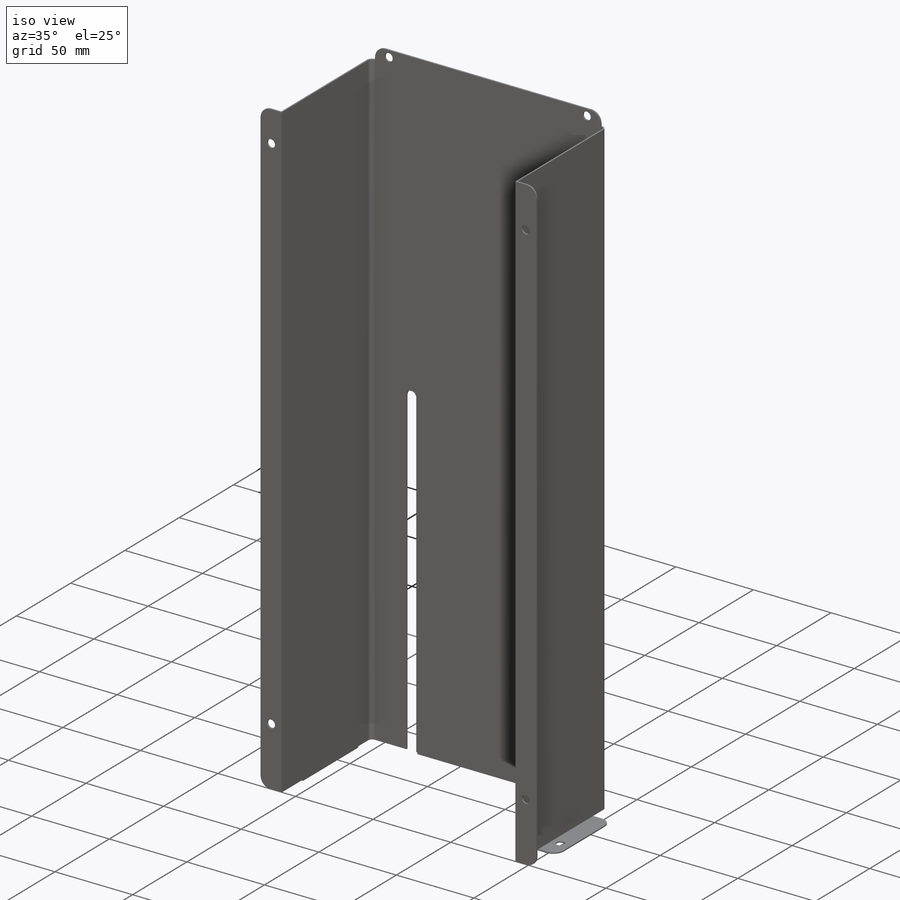
[diagram: iso view]
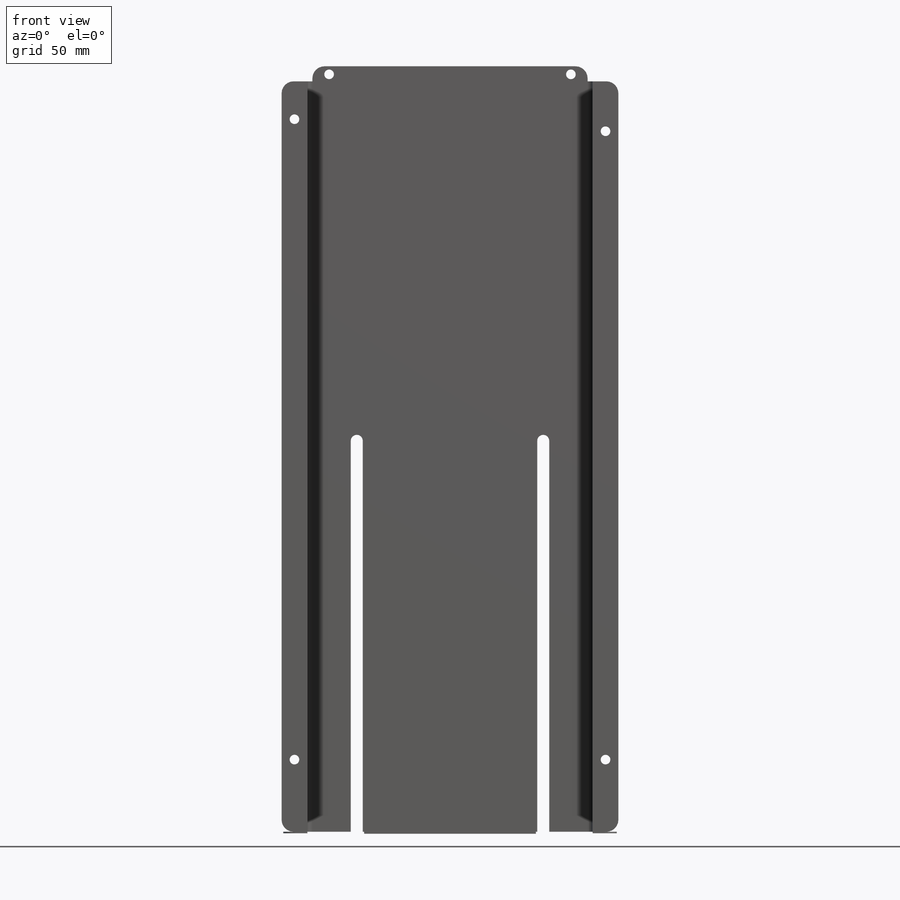
[diagram: front view]
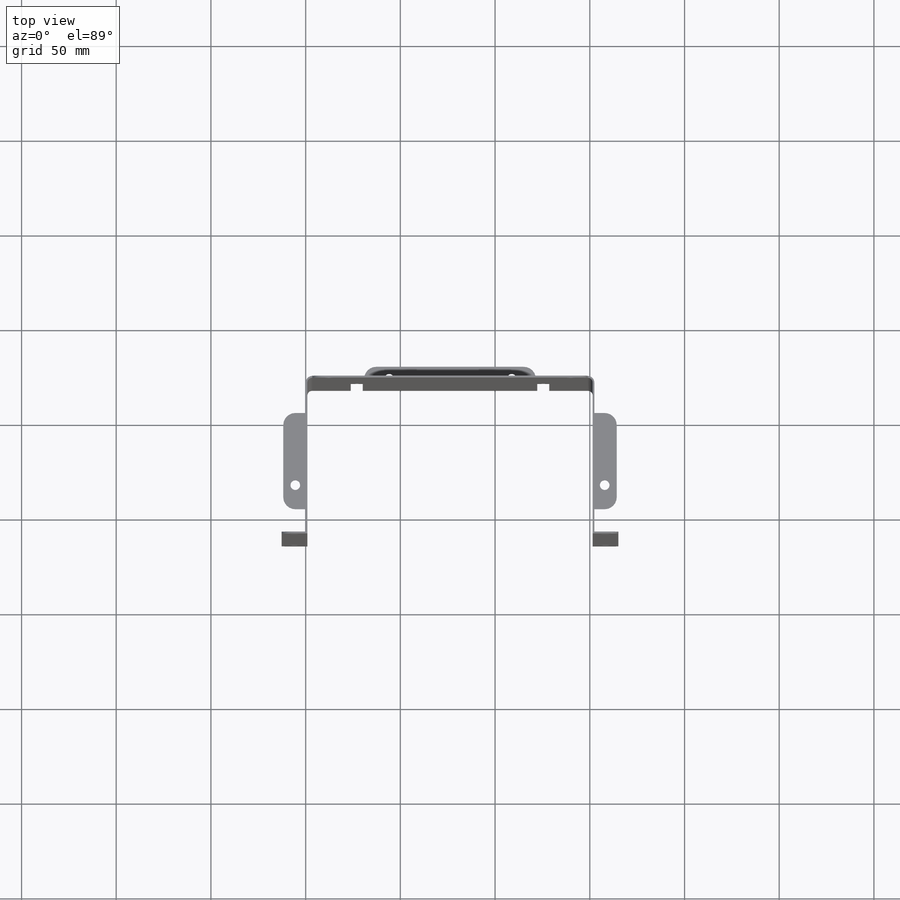
[diagram: top view]
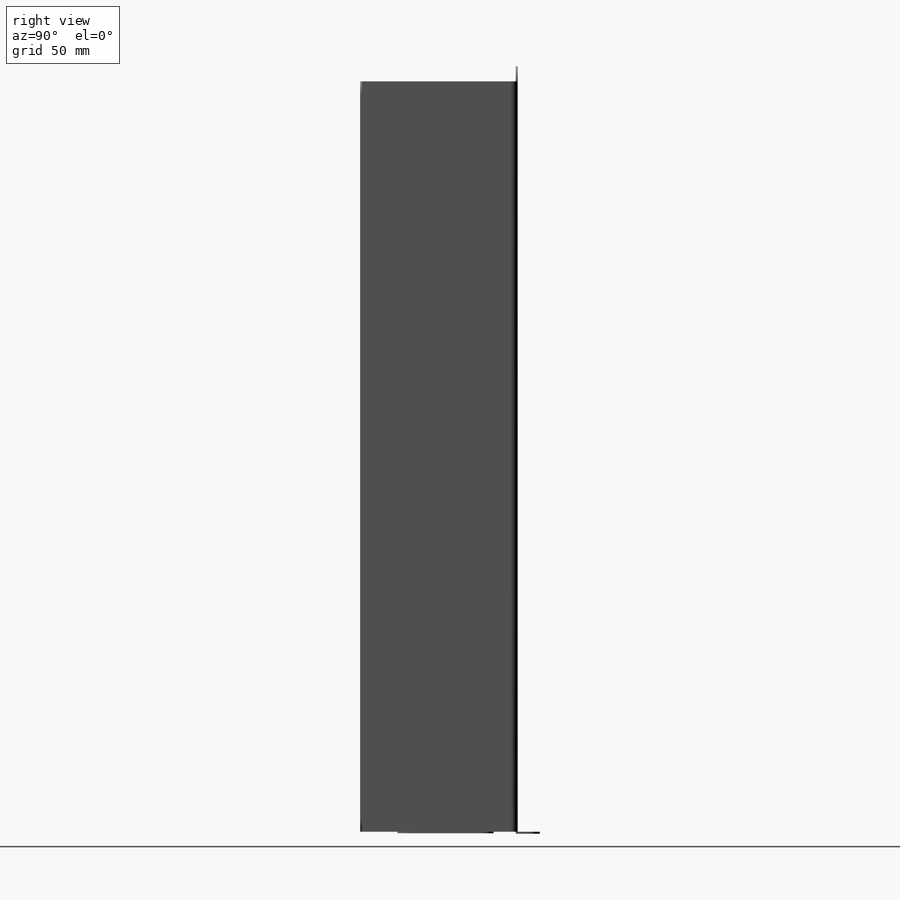
[diagram: right view]
SOLIDWORKS PART (.sldprt)
format: sldprt  version: not decoded by parser v0  size: 527,360 bytes
history: native  units: mm
features: sketch x13, cut_extrude x8, fillet x7, extrude x4, material x1 (+12 scaffold rows collapsed)
feature tree (45):
  scaffold x12  (default folders/planes/origin — collapsed)
  material  "Material <not specified>"
  sketch  "Sketch1"  dims[D1=0.0mm]
  cut_extrude  "Cut-Extrude1"  Depth=29.21mm
  fillet  "Fillet1"  Radius=6.35mm
  fillet  "Fillet2"  Radius=6.35mm
  sketch  "Sketch2"  dims[D1=5.08mm]
  cut_extrude  "Cut-Extrude2"  Depth=2.54mm
  sketch  "Sketch3"  dims[D1=5.08mm]
  cut_extrude  "Cut-Extrude3"  Depth=2.54mm
  sketch  "Sketch4"
  cut_extrude  "Cut-Extrude4"  [1 undecoded]
  sketch  "Sketch5"
  extrude  "Boss-Extrude1"  [1 undecoded]
  sketch  "Sketch6"  dims[D1=5.08mm]
  sketch  "Sketch7"
  cut_extrude  "Cut-Extrude6"  Depth=5.3975mm
  sketch  "Sketch8"  dims[D1=5.08mm]
  cut_extrude  "Cut-Extrude7"  Depth=7.874mm
  sketch  "Sketch9"
  extrude  "Boss-Extrude2"  [1 undecoded]
  sketch  "Sketch10"  dims[c1.D1=209.55mm c1.D2=6.35mm c1.D3=23.8125mm c1.D4=98.425mm c1.D5=152.4mm c2.D3=23.8125mm c2.D4=122.2375mm c2.D6=98.425mm c2.D7=209.55mm c2.D8=6.35mm]
  cut_extrude  "Cut-Extrude8"  Depth=5.08mm
  fillet  "Fillet6"  [1 undecoded]
  fillet  "Fillet7"  [1 undecoded]
  sketch  "Sketch11"
  extrude  "Boss-Extrude3"  [1 undecoded]
  fillet  "Fillet8"  Radius=6.35mm
  fillet  "Fillet9"  Radius=6.35mm
  sketch  "Sketch12"
  extrude  "Boss-Extrude4"  [1 undecoded]
  fillet  "Fillet10"  Radius=6.35mm
  sketch  "Sketch13"  dims[D1=5.08mm]
  cut_extrude  "Cut-Extrude9"  Depth=2.54mm
decode coverage: 19 of 32 modeling features carry decoded parameters
note: 7 parameter values undecoded
summary: no parameter record found for 7 features
note: suppression state not decoded; provenance and decode notes live in map.json
